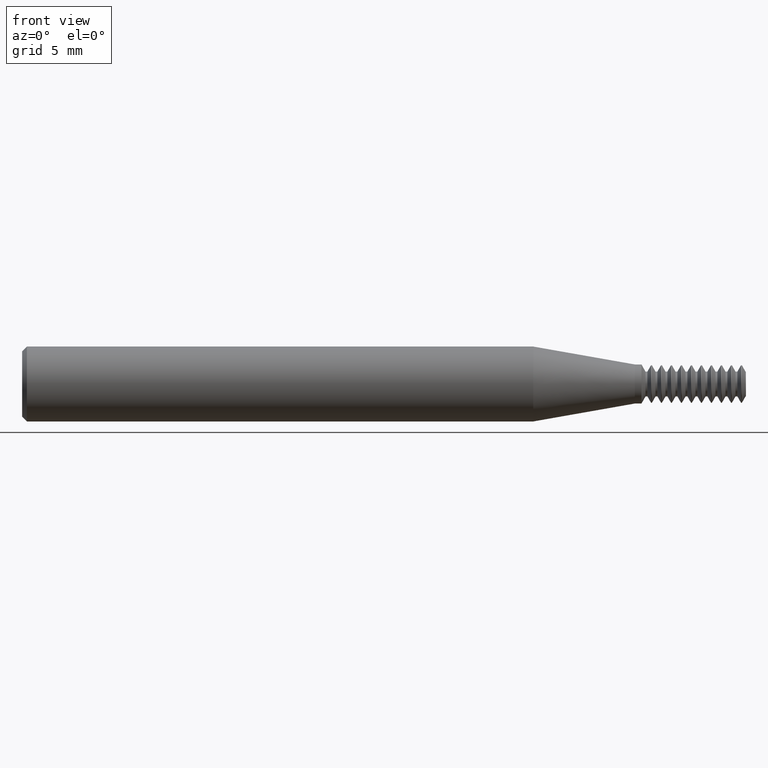
[diagram: clean part render]
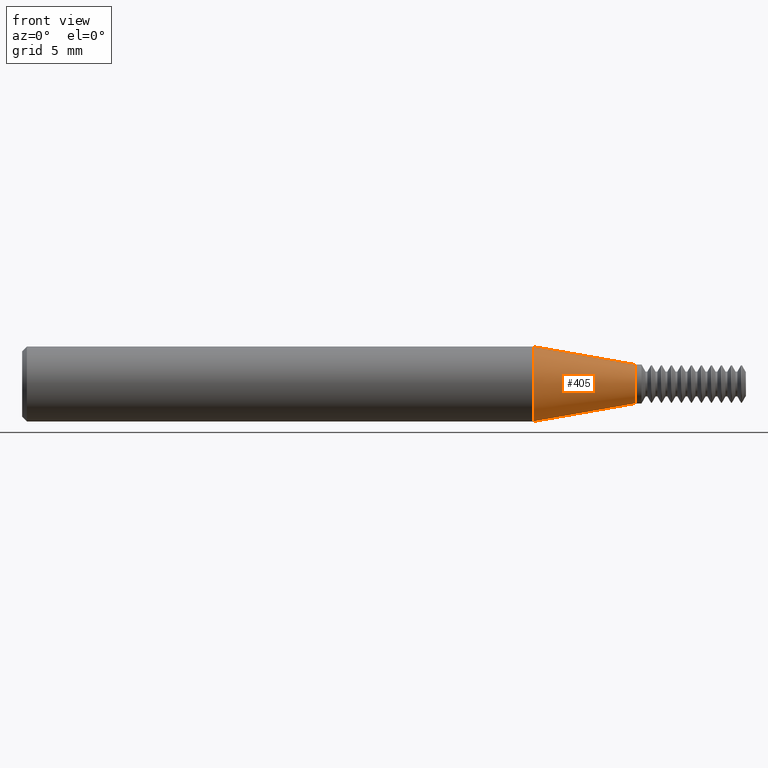
[diagram: same view with one face highlighted and labeled with its STEP entity id]
A machine part, front view. The second image highlights one B-rep face of the part: STEP entity #405.
In plain terms, the highlighted conical surface has half-angle 10 deg.
Its self-contained STEP definition (entity closure, byte-faithful):
#121 = CIRCLE ( 'NONE', #1811, 0.06149999999999998523 ) ;
#231 = DIRECTION ( 'NONE',  ( 1.000000000000000000, -0.0000000000000000000, -0.0000000000000000000 ) ) ;
#276 = AXIS2_PLACEMENT_3D ( 'NONE', #2131, #1007, #2314 ) ;
#379 = EDGE_CURVE ( 'NONE', #1608, #1102, #431, .T. ) ;
#405 = ADVANCED_FACE ( 'NONE', ( #1409 ), #932, .T. ) ;
#431 = CIRCLE ( 'NONE', #1892, 0.1179999999999999938 ) ;
#471 = DIRECTION ( 'NONE',  ( 0.0000000000000000000, 0.0000000000000000000, -1.000000000000000000 ) ) ;
#842 = EDGE_CURVE ( 'NONE', #1553, #1608, #1812, .T. ) ;
#857 = VECTOR ( 'NONE', #2034, 39.37007874015748854 ) ;
#932 = CONICAL_SURFACE ( 'NONE', #276, 0.06149999999999998523, 0.1745329251994333919 ) ;
#939 = ORIENTED_EDGE ( 'NONE', *, *, #379, .T. ) ;
#975 = CARTESIAN_POINT ( 'NONE',  ( 1.930427422808399296, 0.0000000000000000000, 0.0000000000000000000 ) ) ;
#994 = VECTOR ( 'NONE', #2204, 39.37007874015748854 ) ;
#1007 = DIRECTION ( 'NONE',  ( -1.000000000000000000, 0.0000000000000000000, 0.0000000000000000000 ) ) ;
#1061 = CARTESIAN_POINT ( 'NONE',  ( 1.930427422808399296, 1.099120502234749227E-17, -0.06149999999999998523 ) ) ;
#1102 = VERTEX_POINT ( 'NONE', #2270 ) ;
#1362 = VERTEX_POINT ( 'NONE', #1061 ) ;
#1403 = EDGE_CURVE ( 'NONE', #1362, #1102, #2192, .T. ) ;
#1409 = FACE_OUTER_BOUND ( 'NONE', #2292, .T. ) ;
#1454 = ORIENTED_EDGE ( 'NONE', *, *, #2352, .F. ) ;
#1522 = DIRECTION ( 'NONE',  ( 0.0000000000000000000, 0.0000000000000000000, -1.000000000000000000 ) ) ;
#1553 = VERTEX_POINT ( 'NONE', #1706 ) ;
#1561 = DIRECTION ( 'NONE',  ( 1.000000000000000000, -0.0000000000000000000, -0.0000000000000000000 ) ) ;
#1575 = CARTESIAN_POINT ( 'NONE',  ( 1.609999999999999432, 0.0000000000000000000, 0.0000000000000000000 ) ) ;
#1581 = ORIENTED_EDGE ( 'NONE', *, *, #1403, .F. ) ;
#1608 = VERTEX_POINT ( 'NONE', #2075 ) ;
#1706 = CARTESIAN_POINT ( 'NONE',  ( 1.930427422808399296, 0.0000000000000000000, 0.06149999999999998523 ) ) ;
#1811 = AXIS2_PLACEMENT_3D ( 'NONE', #975, #231, #1522 ) ;
#1812 = LINE ( 'NONE', #2011, #857 ) ;
#1892 = AXIS2_PLACEMENT_3D ( 'NONE', #1575, #1561, #471 ) ;
#2011 = CARTESIAN_POINT ( 'NONE',  ( 1.930427422808399296, 0.0000000000000000000, 0.06149999999999998523 ) ) ;
#2034 = DIRECTION ( 'NONE',  ( -0.9848077530122077983, 0.0000000000000000000, 0.1736481776669307475 ) ) ;
#2046 = CARTESIAN_POINT ( 'NONE',  ( 1.930427422808399296, 7.531577814756220955E-18, -0.06149999999999998523 ) ) ;
#2075 = CARTESIAN_POINT ( 'NONE',  ( 1.609999999999999432, 1.445083222993876666E-17, 0.1179999999999999938 ) ) ;
#2131 = CARTESIAN_POINT ( 'NONE',  ( 1.930427422808399296, 0.0000000000000000000, 0.0000000000000000000 ) ) ;
#2192 = LINE ( 'NONE', #2046, #994 ) ;
#2204 = DIRECTION ( 'NONE',  ( -0.9848077530122077983, 2.126576849575776537E-17, -0.1736481776669307475 ) ) ;
#2261 = ORIENTED_EDGE ( 'NONE', *, *, #842, .T. ) ;
#2270 = CARTESIAN_POINT ( 'NONE',  ( 1.609999999999999432, 0.0000000000000000000, -0.1179999999999999938 ) ) ;
#2292 = EDGE_LOOP ( 'NONE', ( #1581, #1454, #2261, #939 ) ) ;
#2314 = DIRECTION ( 'NONE',  ( 0.0000000000000000000, 0.0000000000000000000, 1.000000000000000000 ) ) ;
#2352 = EDGE_CURVE ( 'NONE', #1553, #1362, #121, .T. ) ;